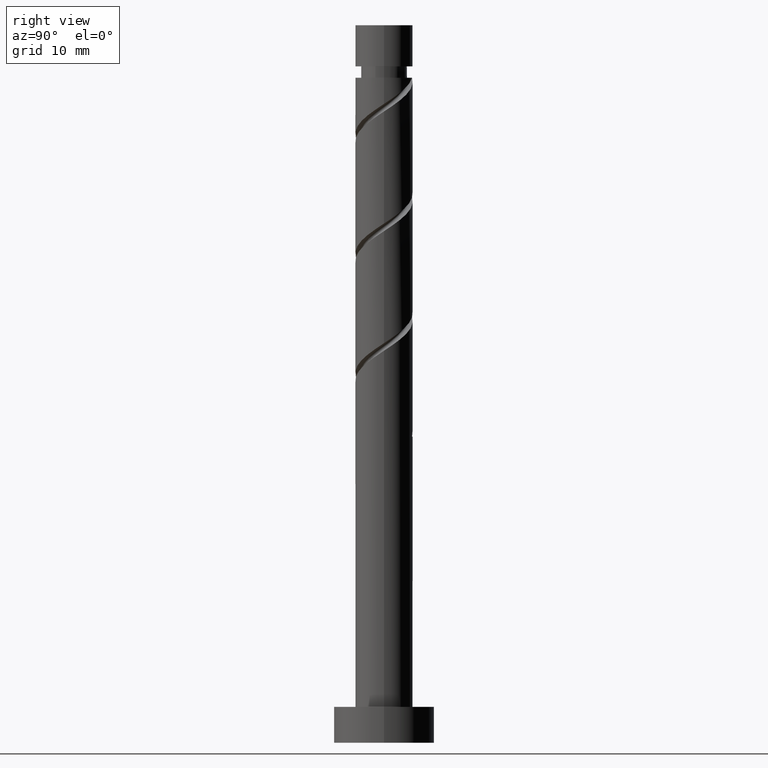
[diagram: clean part render]
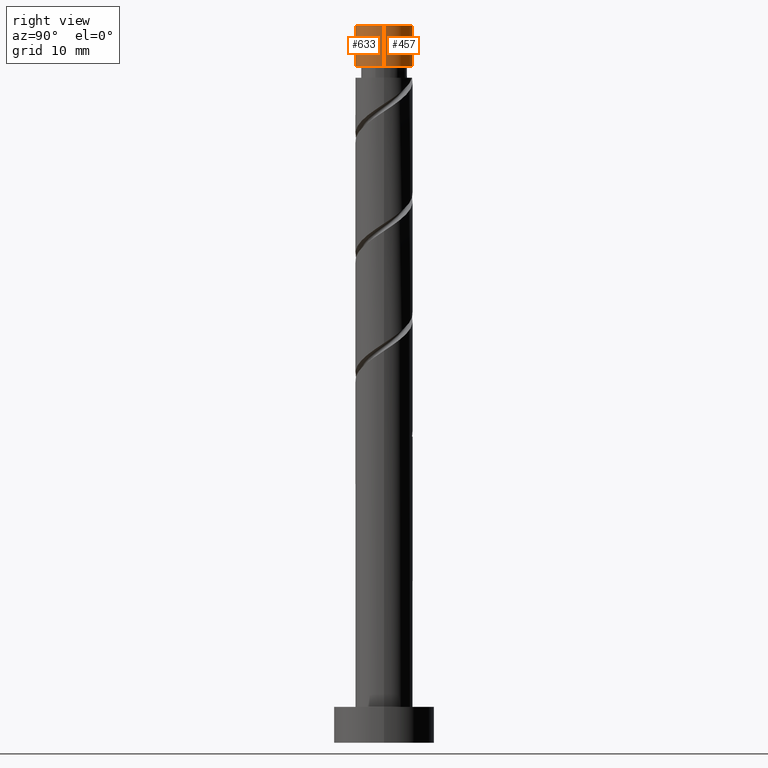
[diagram: same view with one multi-face feature highlighted, each face labeled with its STEP entity id]
A machine part, right view. The highlighted faces form ONE feature: a constant-radius fillet chain: 2 tangent blend faces with common blend radius 4 mm. The faces share edges in the B-rep.
Their STEP definitions:
[1] entity #633 (Cylinder):
#9 = CARTESIAN_POINT ( 'NONE',  ( 4.000000000000000000, 4.898587196589412829E-16, 100.0000000000000000 ) ) ;
#73 = CARTESIAN_POINT ( 'NONE',  ( -4.000000000000000000, 0.000000000000000000, 100.0000000000000000 ) ) ;
#77 = DIRECTION ( 'NONE',  ( -1.000000000000000000, 0.000000000000000000, 0.000000000000000000 ) ) ;
#93 = CIRCLE ( 'NONE', #1161, 4.000000000000000000 ) ;
#186 = CYLINDRICAL_SURFACE ( 'NONE', #1449, 4.000000000000000000 ) ;
#214 = DIRECTION ( 'NONE',  ( -0.000000000000000000, -0.000000000000000000, -1.000000000000000000 ) ) ;
#252 = LINE ( 'NONE', #73, #1214 ) ;
#271 = CARTESIAN_POINT ( 'NONE',  ( 0.000000000000000000, 0.000000000000000000, 94.26922043565160436 ) ) ;
#317 = EDGE_CURVE ( 'NONE', #432, #1434, #252, .T. ) ;
#344 = CARTESIAN_POINT ( 'NONE',  ( -4.000000000000000888, 0.000000000000000000, 94.26922043565160436 ) ) ;
#432 = VERTEX_POINT ( 'NONE', #701 ) ;
#446 = DIRECTION ( 'NONE',  ( 1.000000000000000000, 0.000000000000000000, 0.000000000000000000 ) ) ;
#597 = EDGE_LOOP ( 'NONE', ( #1173, #744, #948, #889 ) ) ;
#633 = ADVANCED_FACE ( 'NONE', ( #1217 ), #186, .T. ) ;
#671 = CARTESIAN_POINT ( 'NONE',  ( 4.000000000000000888, 4.898587196589413815E-16, 94.26922043565160436 ) ) ;
#678 = EDGE_CURVE ( 'NONE', #432, #959, #93, .T. ) ;
#701 = CARTESIAN_POINT ( 'NONE',  ( -4.000000000000000000, 0.000000000000000000, 100.0000000000000000 ) ) ;
#706 = EDGE_CURVE ( 'NONE', #959, #707, #1157, .T. ) ;
#707 = VERTEX_POINT ( 'NONE', #671 ) ;
#744 = ORIENTED_EDGE ( 'NONE', *, *, #678, .F. ) ;
#781 = VECTOR ( 'NONE', #214, 1000.000000000000000 ) ;
#889 = ORIENTED_EDGE ( 'NONE', *, *, #1091, .F. ) ;
#900 = CARTESIAN_POINT ( 'NONE',  ( 4.000000000000000000, 4.898587196589412829E-16, 100.0000000000000000 ) ) ;
#948 = ORIENTED_EDGE ( 'NONE', *, *, #317, .T. ) ;
#959 = VERTEX_POINT ( 'NONE', #9 ) ;
#975 = DIRECTION ( 'NONE',  ( -0.000000000000000000, -0.000000000000000000, -1.000000000000000000 ) ) ;
#1091 = EDGE_CURVE ( 'NONE', #707, #1434, #1208, .T. ) ;
#1109 = CARTESIAN_POINT ( 'NONE',  ( 0.000000000000000000, 0.000000000000000000, 100.0000000000000000 ) ) ;
#1157 = LINE ( 'NONE', #900, #781 ) ;
#1161 = AXIS2_PLACEMENT_3D ( 'NONE', #1269, #1246, #446 ) ;
#1173 = ORIENTED_EDGE ( 'NONE', *, *, #706, .F. ) ;
#1201 = DIRECTION ( 'NONE',  ( -0.000000000000000000, -0.000000000000000000, -1.000000000000000000 ) ) ;
#1208 = CIRCLE ( 'NONE', #1259, 4.000000000000000888 ) ;
#1214 = VECTOR ( 'NONE', #1461, 1000.000000000000000 ) ;
#1217 = FACE_OUTER_BOUND ( 'NONE', #597, .T. ) ;
#1246 = DIRECTION ( 'NONE',  ( 0.000000000000000000, 0.000000000000000000, 1.000000000000000000 ) ) ;
#1259 = AXIS2_PLACEMENT_3D ( 'NONE', #271, #1201, #1448 ) ;
#1269 = CARTESIAN_POINT ( 'NONE',  ( 0.000000000000000000, 0.000000000000000000, 100.0000000000000000 ) ) ;
#1434 = VERTEX_POINT ( 'NONE', #344 ) ;
#1448 = DIRECTION ( 'NONE',  ( -1.000000000000000000, 0.000000000000000000, 0.000000000000000000 ) ) ;
#1449 = AXIS2_PLACEMENT_3D ( 'NONE', #1109, #975, #77 ) ;
#1461 = DIRECTION ( 'NONE',  ( -0.000000000000000000, -0.000000000000000000, -1.000000000000000000 ) ) ;
[2] entity #457 (Cylinder):
#9 = CARTESIAN_POINT ( 'NONE',  ( 4.000000000000000000, 4.898587196589412829E-16, 100.0000000000000000 ) ) ;
#12 = DIRECTION ( 'NONE',  ( -0.000000000000000000, -0.000000000000000000, -1.000000000000000000 ) ) ;
#73 = CARTESIAN_POINT ( 'NONE',  ( -4.000000000000000000, 0.000000000000000000, 100.0000000000000000 ) ) ;
#84 = CARTESIAN_POINT ( 'NONE',  ( 0.000000000000000000, 0.000000000000000000, 100.0000000000000000 ) ) ;
#113 = ORIENTED_EDGE ( 'NONE', *, *, #317, .F. ) ;
#114 = DIRECTION ( 'NONE',  ( -1.000000000000000000, 0.000000000000000000, 0.000000000000000000 ) ) ;
#144 = ORIENTED_EDGE ( 'NONE', *, *, #706, .T. ) ;
#214 = DIRECTION ( 'NONE',  ( -0.000000000000000000, -0.000000000000000000, -1.000000000000000000 ) ) ;
#252 = LINE ( 'NONE', #73, #1214 ) ;
#281 = AXIS2_PLACEMENT_3D ( 'NONE', #815, #12, #114 ) ;
#317 = EDGE_CURVE ( 'NONE', #432, #1434, #252, .T. ) ;
#344 = CARTESIAN_POINT ( 'NONE',  ( -4.000000000000000888, 0.000000000000000000, 94.26922043565160436 ) ) ;
#432 = VERTEX_POINT ( 'NONE', #701 ) ;
#457 = ADVANCED_FACE ( 'NONE', ( #591 ), #1071, .T. ) ;
#474 = EDGE_LOOP ( 'NONE', ( #1254, #144, #610, #113 ) ) ;
#495 = DIRECTION ( 'NONE',  ( 0.000000000000000000, 0.000000000000000000, 1.000000000000000000 ) ) ;
#591 = FACE_OUTER_BOUND ( 'NONE', #474, .T. ) ;
#610 = ORIENTED_EDGE ( 'NONE', *, *, #1464, .F. ) ;
#671 = CARTESIAN_POINT ( 'NONE',  ( 4.000000000000000888, 4.898587196589413815E-16, 94.26922043565160436 ) ) ;
#701 = CARTESIAN_POINT ( 'NONE',  ( -4.000000000000000000, 0.000000000000000000, 100.0000000000000000 ) ) ;
#706 = EDGE_CURVE ( 'NONE', #959, #707, #1157, .T. ) ;
#707 = VERTEX_POINT ( 'NONE', #671 ) ;
#711 = CIRCLE ( 'NONE', #281, 4.000000000000000888 ) ;
#725 = EDGE_CURVE ( 'NONE', #959, #432, #1087, .T. ) ;
#781 = VECTOR ( 'NONE', #214, 1000.000000000000000 ) ;
#815 = CARTESIAN_POINT ( 'NONE',  ( 0.000000000000000000, 0.000000000000000000, 94.26922043565160436 ) ) ;
#818 = CARTESIAN_POINT ( 'NONE',  ( 0.000000000000000000, 0.000000000000000000, 100.0000000000000000 ) ) ;
#893 = DIRECTION ( 'NONE',  ( -1.000000000000000000, 0.000000000000000000, 0.000000000000000000 ) ) ;
#900 = CARTESIAN_POINT ( 'NONE',  ( 4.000000000000000000, 4.898587196589412829E-16, 100.0000000000000000 ) ) ;
#938 = AXIS2_PLACEMENT_3D ( 'NONE', #818, #1473, #893 ) ;
#959 = VERTEX_POINT ( 'NONE', #9 ) ;
#1071 = CYLINDRICAL_SURFACE ( 'NONE', #938, 4.000000000000000000 ) ;
#1087 = CIRCLE ( 'NONE', #1329, 4.000000000000000000 ) ;
#1157 = LINE ( 'NONE', #900, #781 ) ;
#1214 = VECTOR ( 'NONE', #1461, 1000.000000000000000 ) ;
#1254 = ORIENTED_EDGE ( 'NONE', *, *, #725, .F. ) ;
#1329 = AXIS2_PLACEMENT_3D ( 'NONE', #84, #495, #1350 ) ;
#1350 = DIRECTION ( 'NONE',  ( 1.000000000000000000, 0.000000000000000000, 0.000000000000000000 ) ) ;
#1434 = VERTEX_POINT ( 'NONE', #344 ) ;
#1461 = DIRECTION ( 'NONE',  ( -0.000000000000000000, -0.000000000000000000, -1.000000000000000000 ) ) ;
#1464 = EDGE_CURVE ( 'NONE', #1434, #707, #711, .T. ) ;
#1473 = DIRECTION ( 'NONE',  ( -0.000000000000000000, -0.000000000000000000, -1.000000000000000000 ) ) ;